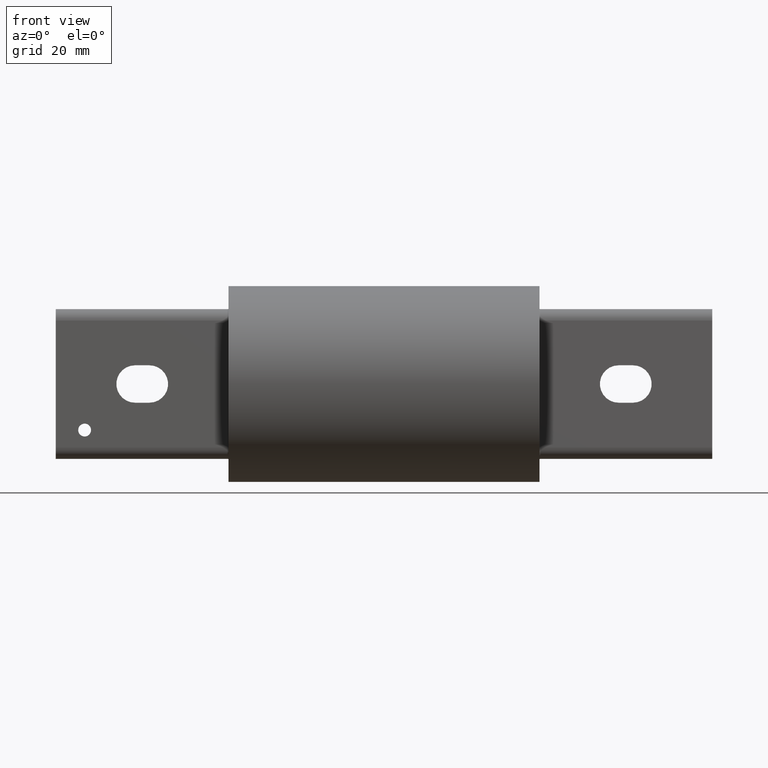
[diagram: clean part render]
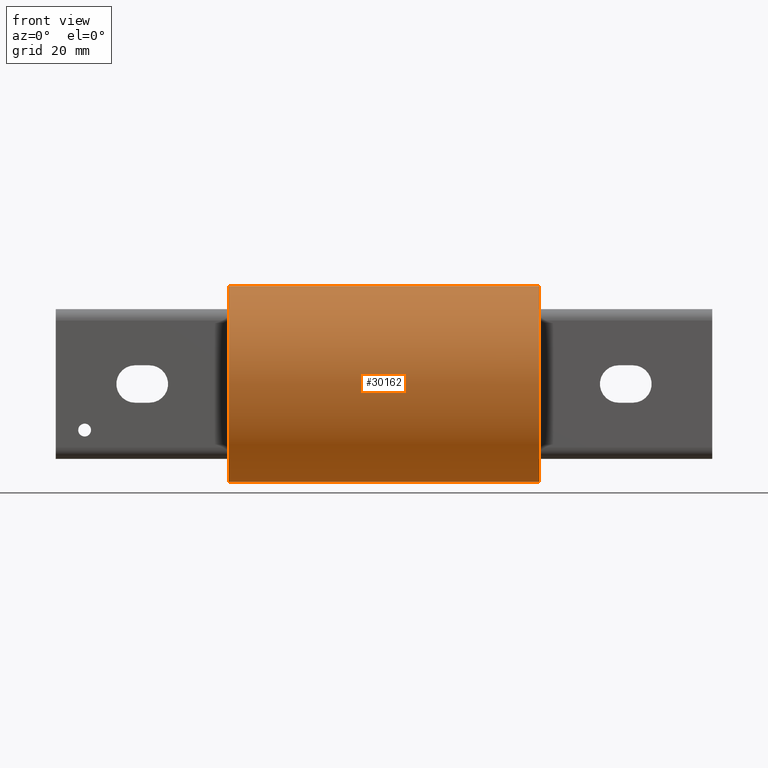
[diagram: same view with one face highlighted and labeled with its STEP entity id]
A machine part, front view. The second image highlights one B-rep face of the part: STEP entity #30162.
In plain terms, the highlighted cylindrical surface (bore or boss wall) has radius 26.9875 mm, axis along (-1, -0, -0).
Its self-contained STEP definition (entity closure, byte-faithful):
#771 = DIRECTION ( 'NONE',  ( 0.0000000000000000000, 0.0000000000000000000, -1.000000000000000000 ) ) ;
#1145 = EDGE_CURVE ( 'NONE', #16909, #16909, #5759, .T. ) ;
#2033 = CARTESIAN_POINT ( 'NONE',  ( -1.444499999999999200, 0.9610804105256478500, 0.4530239447356531600 ) ) ;
#2174 = CARTESIAN_POINT ( 'NONE',  ( -1.492669781385832500, 0.9877550868041907700, 0.3914787113679966100 ) ) ;
#2328 = CARTESIAN_POINT ( 'NONE',  ( -1.403965505574032300, 0.9931642423612170300, 0.3775618017554948100 ) ) ;
#2476 = CARTESIAN_POINT ( 'NONE',  ( -1.437793395863952800, 0.9610804105256478500, 0.4530239447356532700 ) ) ;
#2798 = CARTESIAN_POINT ( 'NONE',  ( 1.421993962518610000, 0.9632644398155031400, 0.4483631280161314800 ) ) ;
#4394 = CARTESIAN_POINT ( 'NONE',  ( 1.393748237899396600, 0.9828784638063434700, 0.4035680028134850400 ) ) ;
#4815 = VERTEX_POINT ( 'NONE', #32321 ) ;
#5345 = CARTESIAN_POINT ( 'NONE',  ( 1.444499999999999900, 0.9610804105256478500, 0.4530239447356531600 ) ) ;
#5394 = CARTESIAN_POINT ( 'NONE',  ( -1.467006037481389400, 0.9632644398155025800, 0.4483631280161313200 ) ) ;
#5540 = CARTESIAN_POINT ( 'NONE',  ( -1.485138259316612700, 0.9931227299872282800, 0.3776717910935446500 ) ) ;
#5550 = CARTESIAN_POINT ( 'NONE',  ( 1.490127816371411100, 0.9728089894855096500, 0.4272685279110549600 ) ) ;
#5697 = CARTESIAN_POINT ( 'NONE',  ( -1.395085628380285300, 0.9866659027883356600, 0.3942515944498702900 ) ) ;
#5759 = B_SPLINE_CURVE_WITH_KNOTS ( 'NONE', 3,
 ( #16287, #18225, #25898, #2798, #34865, #17648, #6209, #41599, #41384, #15453, #33632, #4394, #19107, #26149, #36617, #37801, #35765, #34442, #41440, #27074, #14489, #25798, #28179, #42513, #10846, #8820, #33450, #10355, #17844, #36764, #18919, #22910, #19348, #5550, #16231, #39869, #28752, #26567, #43006, #43183, #23628, #7544 ),
 .UNSPECIFIED., .T., .F.,
 ( 4, 2, 2, 2, 2, 2, 2, 2, 2, 2, 2, 2, 2, 2, 2, 2, 2, 2, 2, 2, 4 ),
 ( 0.0000000000000000000, 0.0005037841384814500100, 0.0007556762077221654700, 0.001007568276962880900, 0.001511352415444311400, 0.002015136553925741900, 0.002267028623166458900, 0.002518920692407176300, 0.003022704830888603300, 0.003526488969370029900, 0.003778381038610742100, 0.004030273107851454300, 0.004534057246332858800, 0.005037841384814263300, 0.005541625523295667800, 0.006045409661777072200, 0.006549193800258476700, 0.006801085869499179400, 0.007052977938739882000, 0.007556762077221297800, 0.008060546215702712700 ),
 .UNSPECIFIED. ) ;
#6209 = CARTESIAN_POINT ( 'NONE',  ( 1.410951463643794500, 0.9663615846677319200, 0.4416526051811755500 ) ) ;
#7544 = CARTESIAN_POINT ( 'NONE',  ( 1.444499999999999900, 0.9610804105256478500, 0.4530239447356531100 ) ) ;
#8791 = AXIS2_PLACEMENT_3D ( 'NONE', #39703, #19614, #43025 ) ;
#8809 = CARTESIAN_POINT ( 'NONE',  ( -1.475437098791994700, 0.9654671898577678000, 0.4436020191946591900 ) ) ;
#8820 = CARTESIAN_POINT ( 'NONE',  ( 1.470001300283345600, 0.9977491254882778800, 0.3652524140328531300 ) ) ;
#8959 = CARTESIAN_POINT ( 'NONE',  ( -1.470083403773963200, 0.9977352609648574300, 0.3652904451989789600 ) ) ;
#9046 = CARTESIAN_POINT ( 'NONE',  ( -1.687500000000000000, 0.0000000000000000000, -1.062500000000000000 ) ) ;
#9093 = CARTESIAN_POINT ( 'NONE',  ( -1.393743286628794200, 0.9790795795171493000, 0.4127399387797406900 ) ) ;
#9177 = ORIENTED_EDGE ( 'NONE', *, *, #14662, .F. ) ;
#9340 = CARTESIAN_POINT ( 'NONE',  ( -1.444499999999999900, 0.9610804105256478500, 0.4530239447356531100 ) ) ;
#10355 = CARTESIAN_POINT ( 'NONE',  ( 1.485034494425967700, 0.9931642423612171400, 0.3775618017554947500 ) ) ;
#10846 = CARTESIAN_POINT ( 'NONE',  ( 1.457783119424485700, 0.9994762519244353400, 0.3604994663082501400 ) ) ;
#11435 = AXIS2_PLACEMENT_3D ( 'NONE', #20779, #37467, #14219 ) ;
#11492 = EDGE_LOOP ( 'NONE', ( #22758 ) ) ;
#12194 = CARTESIAN_POINT ( 'NONE',  ( -1.485069884026251300, 0.9692682728213228800, 0.4352553379814750300 ) ) ;
#12343 = CARTESIAN_POINT ( 'NONE',  ( -1.457696421634233000, 0.9993687799290421600, 0.3607890169769719700 ) ) ;
#12500 = CARTESIAN_POINT ( 'NONE',  ( -1.398872183628588900, 0.9728089894855093100, 0.4272685279110547400 ) ) ;
#14219 = DIRECTION ( 'NONE',  ( 0.0000000000000000000, 0.0000000000000000000, 1.000000000000000000 ) ) ;
#14271 = VERTEX_POINT ( 'NONE', #9340 ) ;
#14489 = CARTESIAN_POINT ( 'NONE',  ( 1.431303578365767000, 0.9993687799290421600, 0.3607890169769719700 ) ) ;
#14662 = EDGE_CURVE ( 'NONE', #4815, #4815, #31159, .T. ) ;
#15453 = CARTESIAN_POINT ( 'NONE',  ( 1.395086819123665800, 0.9764611717740230300, 0.4188879700029298800 ) ) ;
#15553 = CARTESIAN_POINT ( 'NONE',  ( -1.493913180876332600, 0.9764611717740230300, 0.4188879700029299900 ) ) ;
#15692 = CARTESIAN_POINT ( 'NONE',  ( -1.447830252441234100, 0.9999223779069169600, 0.3592512883238901900 ) ) ;
#15836 = CARTESIAN_POINT ( 'NONE',  ( -1.404104263097052600, 0.9693857277139961100, 0.4349772078029174900 ) ) ;
#16184 = FACE_OUTER_BOUND ( 'NONE', #32586, .T. ) ;
#16231 = CARTESIAN_POINT ( 'NONE',  ( 1.488570806312752300, 0.9716314093881357500, 0.4299375125457675600 ) ) ;
#16287 = CARTESIAN_POINT ( 'NONE',  ( 1.444499999999999900, 0.9610804105256478500, 0.4530239447356531100 ) ) ;
#16909 = VERTEX_POINT ( 'NONE', #5345 ) ;
#17648 = CARTESIAN_POINT ( 'NONE',  ( 1.413562901208004700, 0.9654671898577678000, 0.4436020191946590800 ) ) ;
#17844 = CARTESIAN_POINT ( 'NONE',  ( 1.488813454057116300, 0.9911549399264086800, 0.3828260812834780600 ) ) ;
#18225 = CARTESIAN_POINT ( 'NONE',  ( 1.437793395863952800, 0.9610804105256479700, 0.4530239447356530500 ) ) ;
#18866 = CARTESIAN_POINT ( 'NONE',  ( -1.495251762100603200, 0.9828784638063439200, 0.4035680028134848700 ) ) ;
#18919 = CARTESIAN_POINT ( 'NONE',  ( 1.495243235216502200, 0.9842035197911375200, 0.4003679703998780900 ) ) ;
#19009 = CARTESIAN_POINT ( 'NONE',  ( -1.431216880575515000, 0.9994762519244350100, 0.3604994663082499200 ) ) ;
#19107 = CARTESIAN_POINT ( 'NONE',  ( 1.394077654179822100, 0.9841504837645681500, 0.4004555763856232900 ) ) ;
#19157 = CARTESIAN_POINT ( 'NONE',  ( -1.413266190884136900, 0.9654007179788662900, 0.4437676250087336800 ) ) ;
#19348 = CARTESIAN_POINT ( 'NONE',  ( 1.493944814698028500, 0.9764979524535422100, 0.4188029354271919400 ) ) ;
#19614 = DIRECTION ( 'NONE',  ( 1.000000000000000000, 0.0000000000000000000, 0.0000000000000000000 ) ) ;
#19629 = EDGE_LOOP ( 'NONE', ( #35314 ) ) ;
#19775 = CYLINDRICAL_SURFACE ( 'NONE', #11435, 1.062500000000000000 ) ;
#20529 = EDGE_CURVE ( 'NONE', #28401, #28401, #28904, .T. ) ;
#20779 = CARTESIAN_POINT ( 'NONE',  ( 1.687500000000000000, 0.0000000000000000000, 0.0000000000000000000 ) ) ;
#20845 = DIRECTION ( 'NONE',  ( 1.000000000000000000, 0.0000000000000000000, 0.0000000000000000000 ) ) ;
#22241 = CARTESIAN_POINT ( 'NONE',  ( -1.493627701333422700, 0.9865854120998135400, 0.3944186455838726800 ) ) ;
#22252 = ORIENTED_EDGE ( 'NONE', *, *, #20529, .T. ) ;
#22386 = CARTESIAN_POINT ( 'NONE',  ( -1.413332751902834700, 0.9964498131261675400, 0.3688033302054252200 ) ) ;
#22535 = CARTESIAN_POINT ( 'NONE',  ( -1.431130921179595300, 0.9616579448102354800, 0.4518038229290681200 ) ) ;
#22758 = ORIENTED_EDGE ( 'NONE', *, *, #1145, .T. ) ;
#22910 = CARTESIAN_POINT ( 'NONE',  ( 1.495256713371205100, 0.9790795795171491900, 0.4127399387797406300 ) ) ;
#23628 = CARTESIAN_POINT ( 'NONE',  ( 1.451206604136046100, 0.9610804105256477400, 0.4530239447356531600 ) ) ;
#25051 = FACE_BOUND ( 'NONE', #19629, .T. ) ;
#25462 = CARTESIAN_POINT ( 'NONE',  ( -1.457787472584992600, 0.9616461972936524200, 0.4518288874569610400 ) ) ;
#25612 = CARTESIAN_POINT ( 'NONE',  ( -1.488858859538958500, 0.9911269513898762800, 0.3828986655450933900 ) ) ;
#25746 = CARTESIAN_POINT ( 'NONE',  ( -1.400186545942884400, 0.9911549399264084600, 0.3828260812834778900 ) ) ;
#25798 = CARTESIAN_POINT ( 'NONE',  ( 1.437806042407156800, 0.9998097633586091600, 0.3595651681696573300 ) ) ;
#25891 = CARTESIAN_POINT ( 'NONE',  ( -1.444499999999999200, 0.9610804105256478500, 0.4530239447356531600 ) ) ;
#25898 = CARTESIAN_POINT ( 'NONE',  ( 1.431212527415006500, 0.9616461972936528600, 0.4518288874569610400 ) ) ;
#26149 = CARTESIAN_POINT ( 'NONE',  ( 1.395372298666577100, 0.9865854120998134300, 0.3944186455838728500 ) ) ;
#26567 = CARTESIAN_POINT ( 'NONE',  ( 1.475733809115863200, 0.9654007179788660600, 0.4437676250087337900 ) ) ;
#27074 = CARTESIAN_POINT ( 'NONE',  ( 1.428140202085996600, 0.9990424593645501600, 0.3616932982077518700 ) ) ;
#28179 = CARTESIAN_POINT ( 'NONE',  ( 1.441169747558765900, 0.9999223779069176300, 0.3592512883238903600 ) ) ;
#28401 = VERTEX_POINT ( 'NONE', #9046 ) ;
#28752 = CARTESIAN_POINT ( 'NONE',  ( 1.482754440949675600, 0.9683110488959781900, 0.4373619358220039400 ) ) ;
#28841 = CARTESIAN_POINT ( 'NONE',  ( -1.469920794396781100, 0.9639225705360934300, 0.4469484580312640400 ) ) ;
#28904 = CIRCLE ( 'NONE', #8791, 1.062500000000000000 ) ;
#28994 = CARTESIAN_POINT ( 'NONE',  ( -1.475668620476165300, 0.9964543920481091500, 0.3687917883753972800 ) ) ;
#29151 = CARTESIAN_POINT ( 'NONE',  ( -1.393756764783498100, 0.9842035197911376300, 0.4003679703998783100 ) ) ;
#30162 = ADVANCED_FACE ( 'NONE', ( #25051, #32941, #16184, #33994 ), #19775, .T. ) ;
#31159 = CIRCLE ( 'NONE', #41508, 1.062500000000000000 ) ;
#32230 = CARTESIAN_POINT ( 'NONE',  ( -1.478048536356204800, 0.9663615846677322500, 0.4416526051811754900 ) ) ;
#32321 = CARTESIAN_POINT ( 'NONE',  ( 1.687500000000000000, 0.0000000000000000000, -1.062500000000000000 ) ) ;
#32372 = CARTESIAN_POINT ( 'NONE',  ( -1.460859797914002800, 0.9990424593645498300, 0.3616932982077516500 ) ) ;
#32510 = CARTESIAN_POINT ( 'NONE',  ( -1.395055185301970800, 0.9764979524535417600, 0.4188029354271917700 ) ) ;
#32586 = EDGE_LOOP ( 'NONE', ( #9177 ) ) ;
#32941 = FACE_BOUND ( 'NONE', #11492, .T. ) ;
#33450 = CARTESIAN_POINT ( 'NONE',  ( 1.475667248097164900, 0.9964498131261675400, 0.3688033302054252700 ) ) ;
#33632 = CARTESIAN_POINT ( 'NONE',  ( 1.393753545950394700, 0.9790779387113905900, 0.4127426195165527800 ) ) ;
#33994 = FACE_OUTER_BOUND ( 'NONE', #40274, .T. ) ;
#34041 = EDGE_CURVE ( 'NONE', #14271, #14271, #35389, .T. ) ;
#34442 = CARTESIAN_POINT ( 'NONE',  ( 1.413331379523834700, 0.9964543920481090400, 0.3687917883753973900 ) ) ;
#34865 = CARTESIAN_POINT ( 'NONE',  ( 1.419079205603219100, 0.9639225705360930900, 0.4469484580312641500 ) ) ;
#35314 = ORIENTED_EDGE ( 'NONE', *, *, #34041, .T. ) ;
#35389 = B_SPLINE_CURVE_WITH_KNOTS ( 'NONE', 3,
 ( #2033, #42122, #25462, #5394, #28841, #8809, #32230, #12194, #35567, #15553, #38933, #18866, #42265, #22241, #2174, #25612, #5540, #28994, #8959, #32372, #12343, #35718, #15692, #39083, #19009, #42412, #22386, #2328, #25746, #5697, #29151, #9093, #32510, #12500, #35860, #15836, #39224, #19157, #42556, #22535, #2476, #25891 ),
 .UNSPECIFIED., .T., .F.,
 ( 4, 2, 2, 2, 2, 2, 2, 2, 2, 2, 2, 2, 2, 2, 2, 2, 2, 2, 2, 2, 4 ),
 ( 0.0000000000000000000, 0.0005037841384814558600, 0.0007556762077221725200, 0.001007568276962889200, 0.001511352415444319200, 0.002015136553925749700, 0.002267028623166467100, 0.002518920692407184100, 0.003022704830888610300, 0.003526488969370036900, 0.003778381038610749100, 0.004030273107851461300, 0.004534057246332865800, 0.005037841384814270200, 0.005541625523295674700, 0.006045409661777077400, 0.006549193800258481900, 0.006801085869499184600, 0.007052977938739885500, 0.007556762077221297800, 0.008060546215702709200 ),
 .UNSPECIFIED. ) ;
#35567 = CARTESIAN_POINT ( 'NONE',  ( -1.488850820927858400, 0.9715810815835427300, 0.4300857511060198800 ) ) ;
#35718 = CARTESIAN_POINT ( 'NONE',  ( -1.451193957592842800, 0.9998097633586089400, 0.3595651681696570600 ) ) ;
#35765 = CARTESIAN_POINT ( 'NONE',  ( 1.403861740683387100, 0.9931227299872278400, 0.3776717910935447100 ) ) ;
#35860 = CARTESIAN_POINT ( 'NONE',  ( -1.400429193687247900, 0.9716314093881359700, 0.4299375125457677300 ) ) ;
#36617 = CARTESIAN_POINT ( 'NONE',  ( 1.396330218614168200, 0.9877550868041900000, 0.3914787113679965600 ) ) ;
#36764 = CARTESIAN_POINT ( 'NONE',  ( 1.493914371619714300, 0.9866659027883354400, 0.3942515944498700700 ) ) ;
#37467 = DIRECTION ( 'NONE',  ( -1.000000000000000000, -0.0000000000000000000, -0.0000000000000000000 ) ) ;
#37801 = CARTESIAN_POINT ( 'NONE',  ( 1.400141140461041800, 0.9911269513898762800, 0.3828986655450935000 ) ) ;
#38933 = CARTESIAN_POINT ( 'NONE',  ( -1.495246454049605500, 0.9790779387113903700, 0.4127426195165528900 ) ) ;
#39083 = CARTESIAN_POINT ( 'NONE',  ( -1.437893800952508800, 0.9999235776398168700, 0.3592479490346237000 ) ) ;
#39224 = CARTESIAN_POINT ( 'NONE',  ( -1.406245559050323800, 0.9683110488959785200, 0.4373619358220040000 ) ) ;
#39703 = CARTESIAN_POINT ( 'NONE',  ( -1.687500000000000000, 0.0000000000000000000, 0.0000000000000000000 ) ) ;
#39869 = CARTESIAN_POINT ( 'NONE',  ( 1.484895736902947400, 0.9693857277139962300, 0.4349772078029176500 ) ) ;
#40274 = EDGE_LOOP ( 'NONE', ( #22252 ) ) ;
#40891 = CARTESIAN_POINT ( 'NONE',  ( 1.687500000000000000, 0.0000000000000000000, 0.0000000000000000000 ) ) ;
#41384 = CARTESIAN_POINT ( 'NONE',  ( 1.400149179072142100, 0.9715810815835427300, 0.4300857511060197600 ) ) ;
#41440 = CARTESIAN_POINT ( 'NONE',  ( 1.418916596226034600, 0.9977352609648584300, 0.3652904451989794100 ) ) ;
#41508 = AXIS2_PLACEMENT_3D ( 'NONE', #40891, #20845, #771 ) ;
#41599 = CARTESIAN_POINT ( 'NONE',  ( 1.403930115973748500, 0.9692682728213228800, 0.4352553379814750300 ) ) ;
#42122 = CARTESIAN_POINT ( 'NONE',  ( -1.451206604136046500, 0.9610804105256478500, 0.4530239447356531100 ) ) ;
#42265 = CARTESIAN_POINT ( 'NONE',  ( -1.494922345820177200, 0.9841504837645682600, 0.4004555763856235100 ) ) ;
#42412 = CARTESIAN_POINT ( 'NONE',  ( -1.418998699716653900, 0.9977491254882778800, 0.3652524140328530800 ) ) ;
#42513 = CARTESIAN_POINT ( 'NONE',  ( 1.451106199047490900, 0.9999235776398172100, 0.3592479490346239800 ) ) ;
#42556 = CARTESIAN_POINT ( 'NONE',  ( -1.418921554560350400, 0.9638063704910425600, 0.4472023897866052600 ) ) ;
#43006 = CARTESIAN_POINT ( 'NONE',  ( 1.470078445439650300, 0.9638063704910423400, 0.4472023897866051500 ) ) ;
#43025 = DIRECTION ( 'NONE',  ( 0.0000000000000000000, 0.0000000000000000000, -1.000000000000000000 ) ) ;
#43183 = CARTESIAN_POINT ( 'NONE',  ( 1.457869078820404500, 0.9616579448102359200, 0.4518038229290686200 ) ) ;